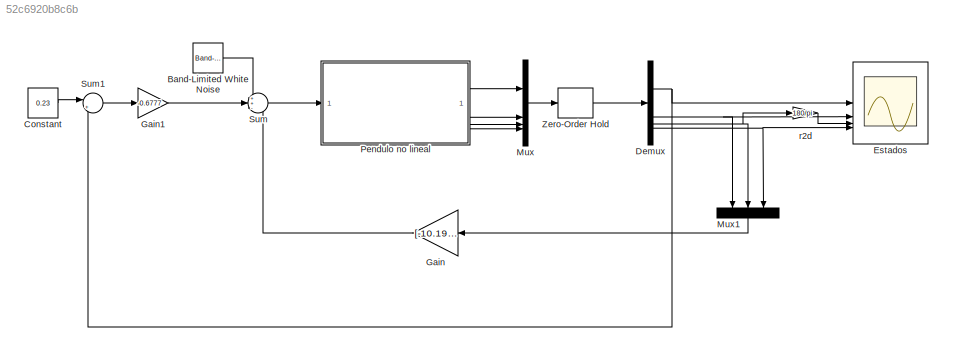
MODEL slx_52c6920b8c6b
KIND model
CONFIG AbsTol = auto
CONFIG EnableMultiTasking = off
CONFIG FixedStep = auto
CONFIG MaxStep = auto
CONFIG MinStep = auto
CONFIG RelTol = 1e-3
CONFIG SampleTimeConstraint = Unconstrained
CONFIG SolverName = VariableStepAuto
CONFIG StartTime = 0.0
CONFIG StopTime = 30
BLOCK [Reference] Band-Limited White Noise  REF=simulink/Sources/Band-Limited
White Noise
  SourceBlock = simulink/Sources/Band-Limited\nWhite Noise
  SourceType = Band-Limited White Noise.
BLOCK [Constant] Constant
  Value = 0.23
BLOCK [Demux] Demux
BLOCK [Scope] Estados
  Floating = off
  NumInputPorts = 4
  ScopeSpecificationString = Simulink.scopes.TimeScopeBlockCfg('CurrentConfiguration', extmgr.ConfigurationSet(extmgr.Configuration('Core','General UI',true,'FigureColor',[1 1 1]),extmgr.Configuration('Core','Source UI',true),extmgr.Configuration('Sources','WiredSimulink',true,'DataLoggingVariableName','ScopeData3'),extmgr.Configuration('Visuals','Time Domain',true,'SerializedDisplays',{struct('MinYLimReal','0.08245','MaxYLim...<+4123ch>
BLOCK [Gain] Gain
  Gain = [-10.1920  -32.9252   -8.2500]
  Multiplication = Matrix(K*u)
  NameLocation = top
BLOCK [Gain] Gain1
  Gain = -0.6777
BLOCK [Mux] Mux
  DisplayOption = bar
BLOCK [Mux] Mux1
  DisplayOption = bar
  Inputs = 3
  NameLocation = left
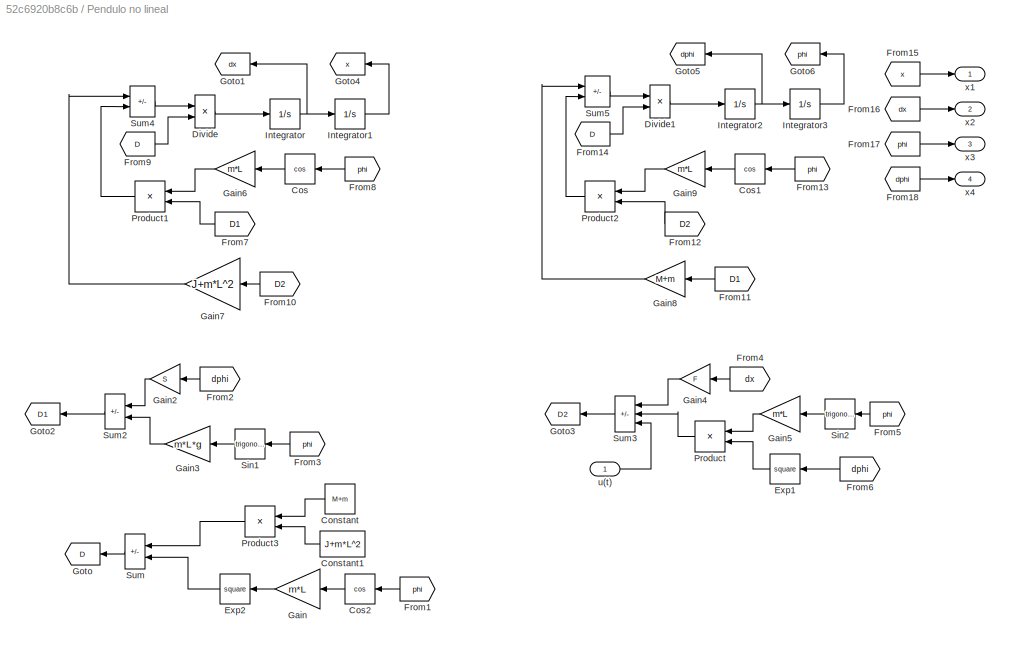
BLOCK [SubSystem] Pendulo no lineal 
BLOCK [Constant] Pendulo no lineal /Constant
  NameLocation = top
  Value = M+m
BLOCK [Constant] Pendulo no lineal /Constant1
  NameLocation = top
  Value = J+m*L^2
BLOCK [Trigonometry] Pendulo no lineal /Cos
  NameLocation = top
  Operator = cos
BLOCK [Trigonometry] Pendulo no lineal /Cos1
  NameLocation = top
  Operator = cos
BLOCK [Trigonometry] Pendulo no lineal /Cos2
  NameLocation = top
  Operator = cos
BLOCK [Product] Pendulo no lineal /Divide
  Inputs = */
  RndMeth = Zero
  SaturateOnIntegerOverflow = on
BLOCK [Product] Pendulo no lineal /Divide1
  Inputs = */
  RndMeth = Zero
  SaturateOnIntegerOverflow = on
BLOCK [Math] Pendulo no lineal /Exp1
  NameLocation = top
  Operator = square
BLOCK [Math] Pendulo no lineal /Exp2
  NameLocation = top
  Operator = square
BLOCK [From] Pendulo no lineal /From1
  GotoTag = phi
  NameLocation = top
BLOCK [From] Pendulo no lineal /From10
  GotoTag = D2
  NameLocation = top
BLOCK [From] Pendulo no lineal /From11
  GotoTag = D1
  NameLocation = top
BLOCK [From] Pendulo no lineal /From12
  GotoTag = D2
  NameLocation = top
BLOCK [From] Pendulo no lineal /From13
  GotoTag = phi
  NameLocation = top
BLOCK [From] Pendulo no lineal /From14
  GotoTag = D
BLOCK [From] Pendulo no lineal /From15
  GotoTag = x
BLOCK [From] Pendulo no lineal /From16
  GotoTag = dx
BLOCK [From] Pendulo no lineal /From17
  GotoTag = phi
BLOCK [From] Pendulo no lineal /From18
  GotoTag = dphi
BLOCK [From] Pendulo no lineal /From2
  GotoTag = dphi
  NameLocation = top
BLOCK [From] Pendulo no lineal /From3
  GotoTag = phi
  NameLocation = top
BLOCK [From] Pendulo no lineal /From4
  GotoTag = dx
  NameLocation = top
BLOCK [From] Pendulo no lineal /From5
  GotoTag = phi
  NameLocation = top
BLOCK [From] Pendulo no lineal /From6
  GotoTag = dphi
  NameLocation = top
BLOCK [From] Pendulo no lineal /From7
  GotoTag = D1
  NameLocation = top
BLOCK [From] Pendulo no lineal /From8
  GotoTag = phi
  NameLocation = top
BLOCK [From] Pendulo no lineal /From9
  GotoTag = D
BLOCK [Gain] Pendulo no lineal /Gain
  Gain = m*L
  NameLocation = top
BLOCK [Gain] Pendulo no lineal /Gain2
  Gain = S
  NameLocation = top
BLOCK [Gain] Pendulo no lineal /Gain3
  Gain = m*L*g
  NameLocation = top
BLOCK [Gain] Pendulo no lineal /Gain4
  Gain = F
  NameLocation = top
BLOCK [Gain] Pendulo no lineal /Gain5
  Gain = m*L
  NameLocation = top
BLOCK [Gain] Pendulo no lineal /Gain6
  Gain = m*L
  NameLocation = top
BLOCK [Gain] Pendulo no lineal /Gain7
  Gain = J+m*L^2
  NameLocation = top
BLOCK [Gain] Pendulo no lineal /Gain8
  Gain = M+m
  NameLocation = top
BLOCK [Gain] Pendulo no lineal /Gain9
  Gain = m*L
  NameLocation = top
BLOCK [Goto] Pendulo no lineal /Goto
  GotoTag = D
  NameLocation = top
BLOCK [Goto] Pendulo no lineal /Goto1
  GotoTag = dx
  NameLocation = top
BLOCK [Goto] Pendulo no lineal /Goto2
  GotoTag = D1
  NameLocation = top
BLOCK [Goto] Pendulo no lineal /Goto3
  GotoTag = D2
  NameLocation = top
BLOCK [Goto] Pendulo no lineal /Goto4
  GotoTag = x
  NameLocation = top
BLOCK [Goto] Pendulo no lineal /Goto5
  GotoTag = dphi
  NameLocation = top
BLOCK [Goto] Pendulo no lineal /Goto6
  GotoTag = phi
  NameLocation = top
BLOCK [Integrator] Pendulo no lineal /Integrator
BLOCK [Integrator] Pendulo no lineal /Integrator1
  InitialCondition = 0.23
BLOCK [Integrator] Pendulo no lineal /Integrator2
  InitialCondition = 0.1
BLOCK [Integrator] Pendulo no lineal /Integrator3
  InitialCondition = 0.06
BLOCK [Product] Pendulo no lineal /Product
  NameLocation = top
BLOCK [Product] Pendulo no lineal /Product1
  NameLocation = top
BLOCK [Product] Pendulo no lineal /Product2
  NameLocation = top
BLOCK [Product] Pendulo no lineal /Product3
  NameLocation = top
BLOCK [Trigonometry] Pendulo no lineal /Sin1
  NameLocation = top
BLOCK [Trigonometry] Pendulo no lineal /Sin2
  NameLocation = top
BLOCK [Sum] Pendulo no lineal /Sum
  IconShape = rectangular
  Inputs = +-
  NameLocation = top
BLOCK [Sum] Pendulo no lineal /Sum2
  IconShape = rectangular
  Inputs = -+
  NameLocation = top
BLOCK [Sum] Pendulo no lineal /Sum3
  IconShape = rectangular
  Inputs = -++
  NameLocation = top
BLOCK [Sum] Pendulo no lineal /Sum4
  IconShape = rectangular
  Inputs = +-
BLOCK [Sum] Pendulo no lineal /Sum5
  IconShape = rectangular
  Inputs = +-
BLOCK [Inport] Pendulo no lineal /u(t)
BLOCK [Outport] Pendulo no lineal /x1
BLOCK [Outport] Pendulo no lineal /x2
  Port = 2
BLOCK [Outport] Pendulo no lineal /x3
  Port = 3
BLOCK [Outport] Pendulo no lineal /x4
  Port = 4
BLOCK [Sum] Sum
  Inputs = ++-
BLOCK [Sum] Sum1
  Inputs = |+-
BLOCK [ZeroOrderHold] Zero-Order Hold
  SampleTime = Tm
BLOCK [Gain] r2d
  Gain = 180/pi
LINE Band-Limited White Noise:1 -> Sum:1
LINE Constant:1 -> Sum1:1
NET Demux:1 -> Estados:1, Sum1:2
NET Demux:2 -> Estados:2, Mux1:1
NET Demux:3 -> Mux1:2, r2d:1
NET Demux:4 -> Estados:4, Mux1:3
LINE Gain1:1 -> Sum:2
LINE Gain:1 -> Sum:3
LINE Mux1:1 -> Gain:1
LINE Mux:1 -> Zero-Order Hold:1
LINE Pendulo no lineal /Constant1:1 -> Pendulo no lineal /Product3:2
LINE Pendulo no lineal /Constant:1 -> Pendulo no lineal /Product3:1
LINE Pendulo no lineal /Cos1:1 -> Pendulo no lineal /Gain9:1
LINE Pendulo no lineal /Cos2:1 -> Pendulo no lineal /Gain:1
LINE Pendulo no lineal /Cos:1 -> Pendulo no lineal /Gain6:1
LINE Pendulo no lineal /Divide1:1 -> Pendulo no lineal /Integrator2:1
LINE Pendulo no lineal /Divide:1 -> Pendulo no lineal /Integrator:1
LINE Pendulo no lineal /Exp1:1 -> Pendulo no lineal /Product:2
LINE Pendulo no lineal /Exp2:1 -> Pendulo no lineal /Sum:2
LINE Pendulo no lineal /From10:1 -> Pendulo no lineal /Gain7:1
LINE Pendulo no lineal /From11:1 -> Pendulo no lineal /Gain8:1
LINE Pendulo no lineal /From12:1 -> Pendulo no lineal /Product2:2
LINE Pendulo no lineal /From13:1 -> Pendulo no lineal /Cos1:1
LINE Pendulo no lineal /From14:1 -> Pendulo no lineal /Divide1:2
LINE Pendulo no lineal /From15:1 -> Pendulo no lineal /x1:1
LINE Pendulo no lineal /From16:1 -> Pendulo no lineal /x2:1
LINE Pendulo no lineal /From17:1 -> Pendulo no lineal /x3:1
LINE Pendulo no lineal /From18:1 -> Pendulo no lineal /x4:1
LINE Pendulo no lineal /From1:1 -> Pendulo no lineal /Cos2:1
LINE Pendulo no lineal /From2:1 -> Pendulo no lineal /Gain2:1
LINE Pendulo no lineal /From3:1 -> Pendulo no lineal /Sin1:1
LINE Pendulo no lineal /From4:1 -> Pendulo no lineal /Gain4:1
LINE Pendulo no lineal /From5:1 -> Pendulo no lineal /Sin2:1
LINE Pendulo no lineal /From6:1 -> Pendulo no lineal /Exp1:1
LINE Pendulo no lineal /From7:1 -> Pendulo no lineal /Product1:2
LINE Pendulo no lineal /From8:1 -> Pendulo no lineal /Cos:1
LINE Pendulo no lineal /From9:1 -> Pendulo no lineal /Divide:2
LINE Pendulo no lineal /Gain2:1 -> Pendulo no lineal /Sum2:1
LINE Pendulo no lineal /Gain3:1 -> Pendulo no lineal /Sum2:2
LINE Pendulo no lineal /Gain4:1 -> Pendulo no lineal /Sum3:1
LINE Pendulo no lineal /Gain5:1 -> Pendulo no lineal /Product:1
LINE Pendulo no lineal /Gain6:1 -> Pendulo no lineal /Product1:1
LINE Pendulo no lineal /Gain7:1 -> Pendulo no lineal /Sum4:1
LINE Pendulo no lineal /Gain8:1 -> Pendulo no lineal /Sum5:1
LINE Pendulo no lineal /Gain9:1 -> Pendulo no lineal /Product2:1
LINE Pendulo no lineal /Gain:1 -> Pendulo no lineal /Exp2:1
LINE Pendulo no lineal /Integrator1:1 -> Pendulo no lineal /Goto4:1
NET Pendulo no lineal /Integrator2:1 -> Pendulo no lineal /Goto5:1, Pendulo no lineal /Integrator3:1
LINE Pendulo no lineal /Integrator3:1 -> Pendulo no lineal /Goto6:1
NET Pendulo no lineal /Integrator:1 -> Pendulo no lineal /Goto1:1, Pendulo no lineal /Integrator1:1
LINE Pendulo no lineal /Product1:1 -> Pendulo no lineal /Sum4:2
LINE Pendulo no lineal /Product2:1 -> Pendulo no lineal /Sum5:2
LINE Pendulo no lineal /Product3:1 -> Pendulo no lineal /Sum:1
LINE Pendulo no lineal /Product:1 -> Pendulo no lineal /Sum3:2
LINE Pendulo no lineal /Sin1:1 -> Pendulo no lineal /Gain3:1
LINE Pendulo no lineal /Sin2:1 -> Pendulo no lineal /Gain5:1
LINE Pendulo no lineal /Sum2:1 -> Pendulo no lineal /Goto2:1
LINE Pendulo no lineal /Sum3:1 -> Pendulo no lineal /Goto3:1
LINE Pendulo no lineal /Sum4:1 -> Pendulo no lineal /Divide:1
LINE Pendulo no lineal /Sum5:1 -> Pendulo no lineal /Divide1:1
LINE Pendulo no lineal /Sum:1 -> Pendulo no lineal /Goto:1
LINE Pendulo no lineal /u(t):1 -> Pendulo no lineal /Sum3:3
LINE Pendulo no lineal :1 -> Mux:1
LINE Pendulo no lineal :2 -> Mux:2
LINE Pendulo no lineal :3 -> Mux:3
LINE Pendulo no lineal :4 -> Mux:4
LINE Sum1:1 -> Gain1:1
LINE Sum:1 -> Pendulo no lineal :1
LINE Zero-Order Hold:1 -> Demux:1
LINE r2d:1 -> Estados:3
note: NET lines group one-source signal fan-out (src -> all destinations, sorted); 1:1 wires keep LINE
